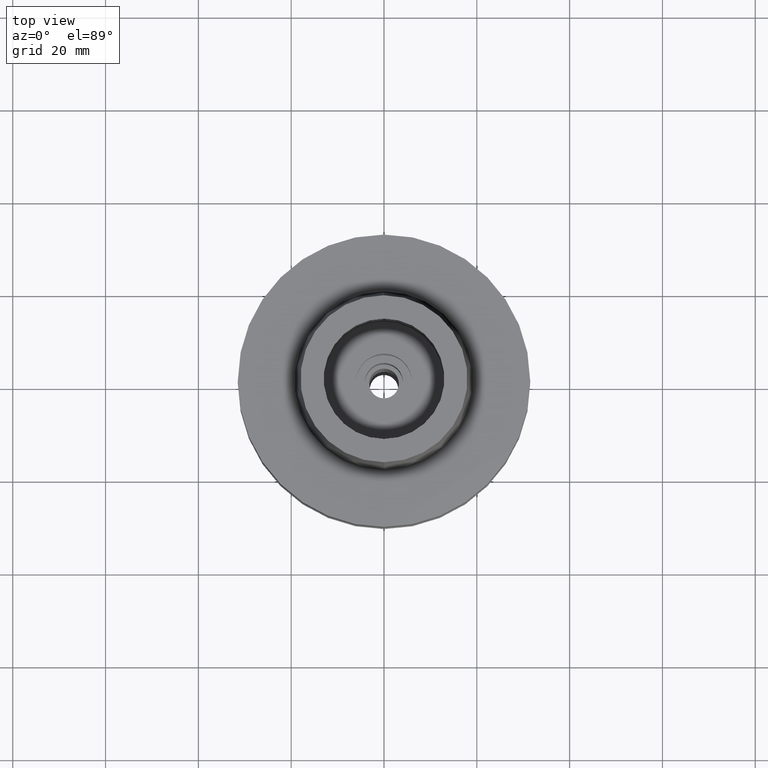
[diagram: clean part render]
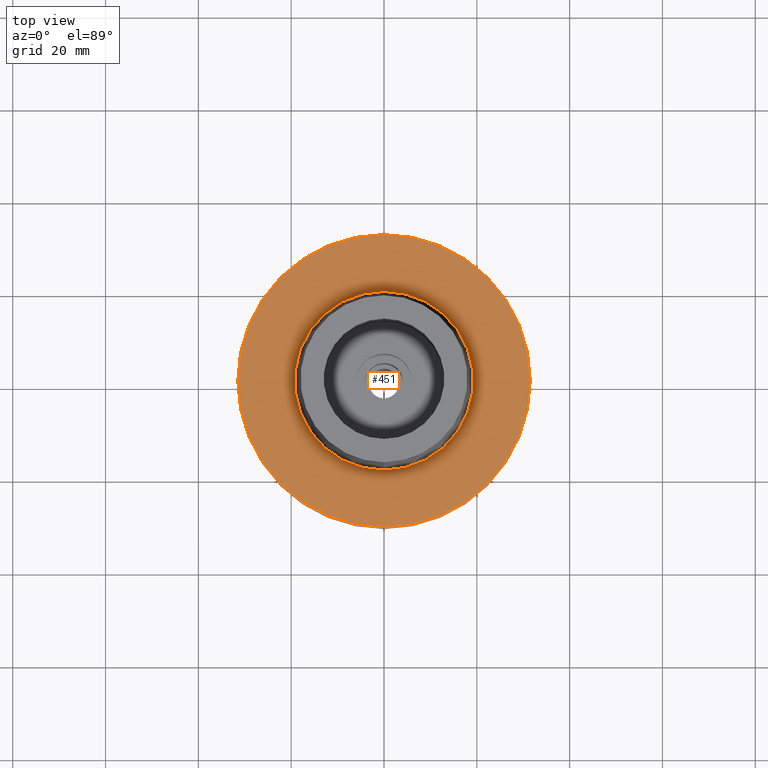
[diagram: same view with one face highlighted and labeled with its STEP entity id]
A machine part, top view. The second image highlights one B-rep face of the part: STEP entity #451.
In plain terms, the highlighted planar face has unit normal (0, 0, 1).
Its self-contained STEP definition (entity closure, byte-faithful):
#159 = CARTESIAN_POINT ( 'NONE',  ( 0.0000000000000000000, 0.0000000000000000000, 0.0000000000000000000 ) ) ;
#179 = EDGE_CURVE ( 'NONE', #1093, #2693, #1331, .T. ) ;
#240 = CARTESIAN_POINT ( 'NONE',  ( 0.0000000000000000000, 0.0000000000000000000, 1.705302565823999875E-13 ) ) ;
#334 = DIRECTION ( 'NONE',  ( 0.0000000000000000000, 0.0000000000000000000, 1.000000000000000000 ) ) ;
#381 = EDGE_LOOP ( 'NONE', ( #957, #699 ) ) ;
#451 = ADVANCED_FACE ( 'NONE', ( #1640, #2738 ), #2298, .T. ) ;
#498 = VERTEX_POINT ( 'NONE', #1056 ) ;
#654 = CIRCLE ( 'NONE', #2609, 31.50000000000000000 ) ;
#699 = ORIENTED_EDGE ( 'NONE', *, *, #2472, .F. ) ;
#769 = DIRECTION ( 'NONE',  ( 0.0000000000000000000, 0.0000000000000000000, 1.000000000000000000 ) ) ;
#875 = DIRECTION ( 'NONE',  ( 0.0000000000000000000, 1.000000000000000000, 0.0000000000000000000 ) ) ;
#893 = CIRCLE ( 'NONE', #1302, 19.24999954280000125 ) ;
#957 = ORIENTED_EDGE ( 'NONE', *, *, #2630, .F. ) ;
#1003 = DIRECTION ( 'NONE',  ( 0.0000000000000000000, 1.000000000000000000, 0.0000000000000000000 ) ) ;
#1056 = CARTESIAN_POINT ( 'NONE',  ( 0.0000000000000000000, 19.24999954280000125, 2.664535259100000578E-13 ) ) ;
#1083 = CARTESIAN_POINT ( 'NONE',  ( 0.0000000000000000000, 31.50000000000000000, 1.705302565823999875E-13 ) ) ;
#1093 = VERTEX_POINT ( 'NONE', #1083 ) ;
#1241 = EDGE_CURVE ( 'NONE', #2693, #1093, #654, .T. ) ;
#1247 = AXIS2_PLACEMENT_3D ( 'NONE', #240, #1507, #875 ) ;
#1302 = AXIS2_PLACEMENT_3D ( 'NONE', #2037, #769, #2286 ) ;
#1331 = CIRCLE ( 'NONE', #1247, 31.50000000000000000 ) ;
#1507 = DIRECTION ( 'NONE',  ( 0.0000000000000000000, 0.0000000000000000000, -1.000000000000000000 ) ) ;
#1587 = VERTEX_POINT ( 'NONE', #1775 ) ;
#1640 = FACE_OUTER_BOUND ( 'NONE', #2030, .T. ) ;
#1740 = ORIENTED_EDGE ( 'NONE', *, *, #179, .F. ) ;
#1775 = CARTESIAN_POINT ( 'NONE',  ( 0.0000000000000000000, -19.24999954280000125, 2.664535259100000578E-13 ) ) ;
#2030 = EDGE_LOOP ( 'NONE', ( #1740, #2602 ) ) ;
#2037 = CARTESIAN_POINT ( 'NONE',  ( 0.0000000000000000000, 0.0000000000000000000, 3.979039320256999774E-13 ) ) ;
#2057 = CARTESIAN_POINT ( 'NONE',  ( 0.0000000000000000000, 0.0000000000000000000, 3.979039320256999774E-13 ) ) ;
#2203 = CIRCLE ( 'NONE', #2667, 19.24999954280000125 ) ;
#2236 = DIRECTION ( 'NONE',  ( 0.0000000000000000000, 0.0000000000000000000, -1.000000000000000000 ) ) ;
#2284 = DIRECTION ( 'NONE',  ( 0.0000000000000000000, -1.000000000000000000, 0.0000000000000000000 ) ) ;
#2286 = DIRECTION ( 'NONE',  ( 0.0000000000000000000, -1.000000000000000000, 0.0000000000000000000 ) ) ;
#2298 = PLANE ( 'NONE',  #2369 ) ;
#2301 = CARTESIAN_POINT ( 'NONE',  ( 0.0000000000000000000, 0.0000000000000000000, 1.705302565823999875E-13 ) ) ;
#2369 = AXIS2_PLACEMENT_3D ( 'NONE', #159, #2571, #2557 ) ;
#2472 = EDGE_CURVE ( 'NONE', #1587, #498, #893, .T. ) ;
#2557 = DIRECTION ( 'NONE',  ( 1.000000000000000000, 0.0000000000000000000, 0.0000000000000000000 ) ) ;
#2571 = DIRECTION ( 'NONE',  ( 0.0000000000000000000, 0.0000000000000000000, 1.000000000000000000 ) ) ;
#2602 = ORIENTED_EDGE ( 'NONE', *, *, #1241, .F. ) ;
#2609 = AXIS2_PLACEMENT_3D ( 'NONE', #2301, #2236, #2284 ) ;
#2630 = EDGE_CURVE ( 'NONE', #498, #1587, #2203, .T. ) ;
#2667 = AXIS2_PLACEMENT_3D ( 'NONE', #2057, #334, #1003 ) ;
#2693 = VERTEX_POINT ( 'NONE', #2723 ) ;
#2723 = CARTESIAN_POINT ( 'NONE',  ( 0.0000000000000000000, -31.50000000000000000, 1.705302565823999875E-13 ) ) ;
#2738 = FACE_BOUND ( 'NONE', #381, .T. ) ;